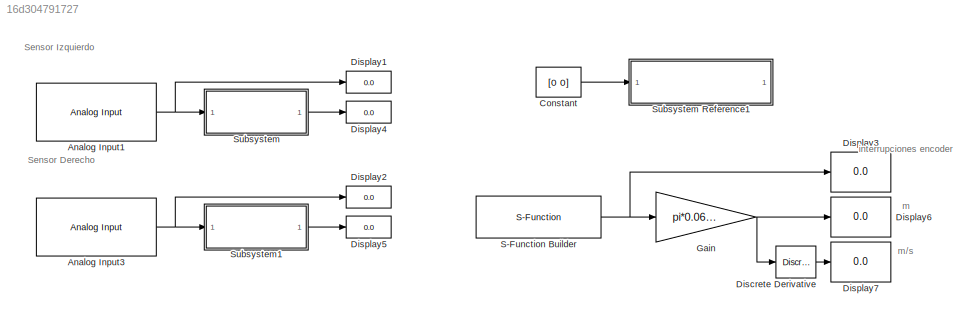
MODEL slx_16d304791727
KIND model
CONFIG AbsTol = auto
CONFIG EnableMultiTasking = on
CONFIG FixedStep = auto
CONFIG MaxStep = auto
CONFIG MinStep = auto
CONFIG RelTol = 1e-3
CONFIG SampleTimeConstraint = Unconstrained
CONFIG SolverName = FixedStepAuto
CONFIG StartTime = 0.0
CONFIG StopTime = inf
BLOCK [Reference] Analog Input1  REF=arduinolib/Analog Input
  SourceBlock = arduinolib/Analog Input
  SourceType = Arduino Analog Input
BLOCK [Reference] Analog Input3  REF=arduinolib/Analog Input
  SourceBlock = arduinolib/Analog Input
  SourceType = Arduino Analog Input
BLOCK [Constant] Constant
  OutDataTypeStr = int16
  Value = [0 0]
BLOCK [Reference] Discrete Derivative  REF=simulink/Discrete/Discrete Derivative
  SourceBlock = simulink/Discrete/Discrete Derivative
  SourceType = Discrete Derivative
BLOCK [Display] Display1
  Decimation = 1
BLOCK [Display] Display2
  Decimation = 1
BLOCK [Display] Display3
  Decimation = 1
BLOCK [Display] Display4
  Decimation = 1
BLOCK [Display] Display5
  Decimation = 1
BLOCK [Display] Display6
  Decimation = 1
BLOCK [Display] Display7
  Decimation = 1
BLOCK [Gain] Gain
  Gain = pi*0.066/1496
BLOCK [S-Function] S-Function Builder
  CopyFcn = set_param(gcbh,'LinkStatus','none')
  EnableBusSupport = off
  FunctionName = EncoderG31
  OpenFcn = sfunctionwizard(gcbh)
  SFcnIsStateOwnerBlock = off
  SFunctionDeploymentMode = off
  SFunctionModules = EncoderG31_wrapper.c
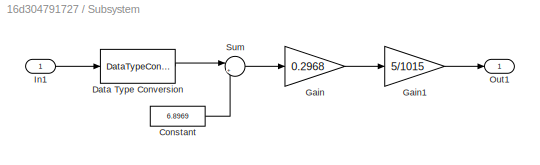
BLOCK [SubSystem] Subsystem
BLOCK [SubSystem] Subsystem Reference1
  ReferencedSubsystem = MotorsG31
BLOCK [Constant] Subsystem/Constant
  Value = 6.8969
BLOCK [DataTypeConversion] Subsystem/Data Type Conversion
  OutDataTypeStr = single
  RndMeth = Floor
  SaturateOnIntegerOverflow = off
BLOCK [Gain] Subsystem/Gain
  Gain = 0.2968
BLOCK [Gain] Subsystem/Gain1
  Gain = 5/1015
BLOCK [Inport] Subsystem/In1
BLOCK [Outport] Subsystem/Out1
BLOCK [Sum] Subsystem/Sum
  Inputs = |+-
  NameLocation = top
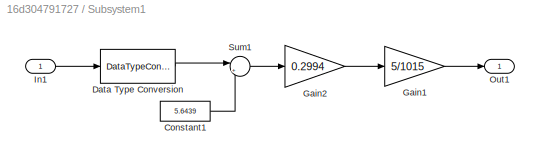
BLOCK [SubSystem] Subsystem1
BLOCK [Constant] Subsystem1/Constant1
  Value = 5.6439
BLOCK [DataTypeConversion] Subsystem1/Data Type Conversion
  OutDataTypeStr = single
  RndMeth = Floor
  SaturateOnIntegerOverflow = off
BLOCK [Gain] Subsystem1/Gain1
  Gain = 5/1015
BLOCK [Gain] Subsystem1/Gain2
  Gain = 0.2994
BLOCK [Inport] Subsystem1/In1
BLOCK [Outport] Subsystem1/Out1
BLOCK [Sum] Subsystem1/Sum1
  Inputs = |+-
ANNOTATION (root): Sensor Derecho
ANNOTATION (root): Sensor Izquierdo
ANNOTATION (root): interrupciones encoder
ANNOTATION (root): m
ANNOTATION (root): m/s
NET Analog Input1:1 -> Display1:1, Subsystem:1
NET Analog Input3:1 -> Display2:1, Subsystem1:1
LINE Constant:1 -> Subsystem Reference1:1
LINE Discrete Derivative:1 -> Display7:1
NET Gain:1 -> Discrete Derivative:1, Display6:1
NET S-Function Builder:1 -> Display3:1, Gain:1
LINE Subsystem/Constant:1 -> Subsystem/Sum:2
LINE Subsystem/Data Type Conversion:1 -> Subsystem/Sum:1
LINE Subsystem/Gain1:1 -> Subsystem/Out1:1
LINE Subsystem/Gain:1 -> Subsystem/Gain1:1
LINE Subsystem/In1:1 -> Subsystem/Data Type Conversion:1
LINE Subsystem/Sum:1 -> Subsystem/Gain:1
LINE Subsystem1/Constant1:1 -> Subsystem1/Sum1:2
LINE Subsystem1/Data Type Conversion:1 -> Subsystem1/Sum1:1
LINE Subsystem1/Gain1:1 -> Subsystem1/Out1:1
LINE Subsystem1/Gain2:1 -> Subsystem1/Gain1:1
LINE Subsystem1/In1:1 -> Subsystem1/Data Type Conversion:1
LINE Subsystem1/Sum1:1 -> Subsystem1/Gain2:1
LINE Subsystem1:1 -> Display5:1
LINE Subsystem:1 -> Display4:1
note: NET lines group one-source signal fan-out (src -> all destinations, sorted); 1:1 wires keep LINE
